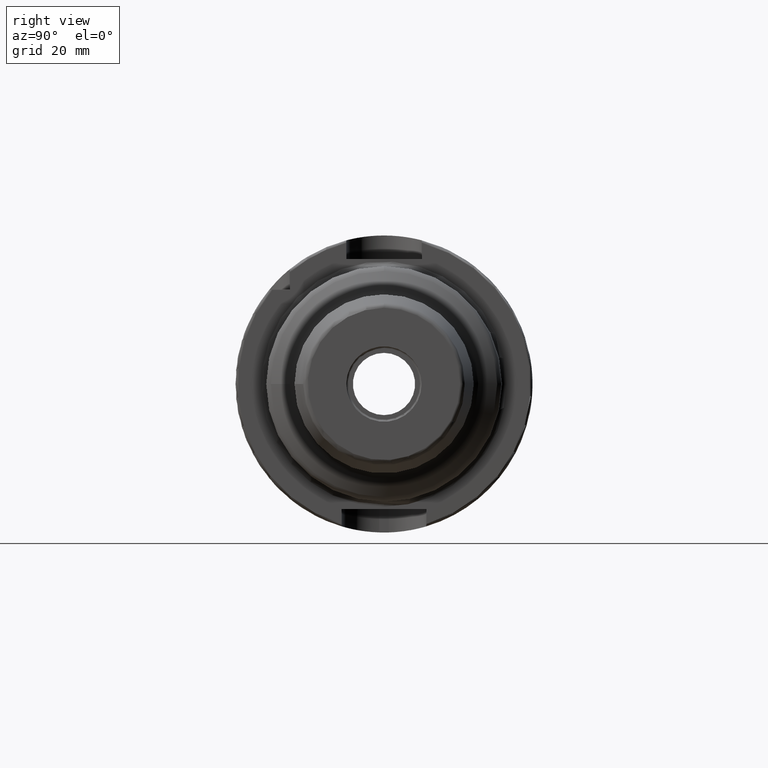
[diagram: clean part render]
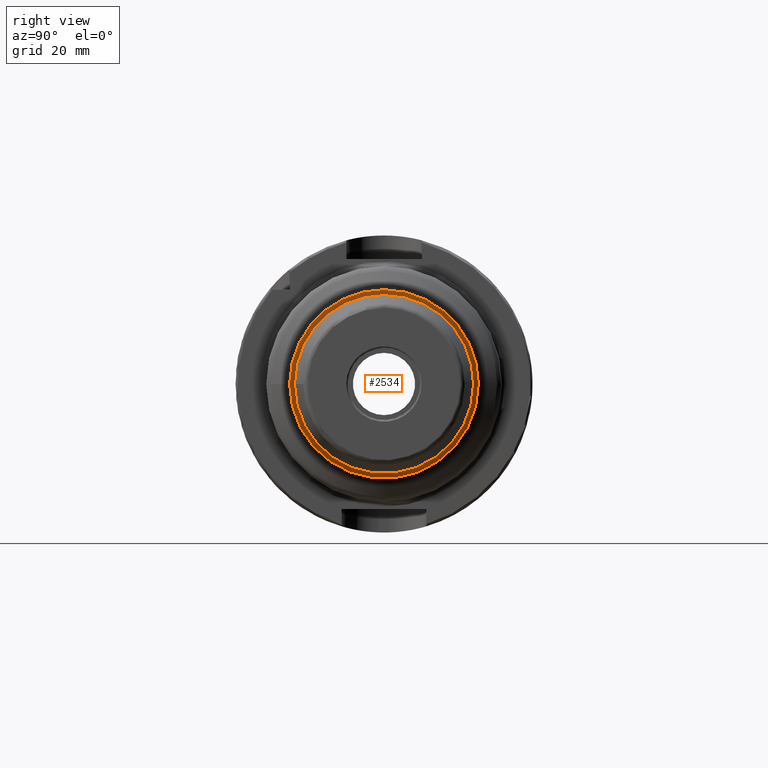
[diagram: same view with one face highlighted and labeled with its STEP entity id]
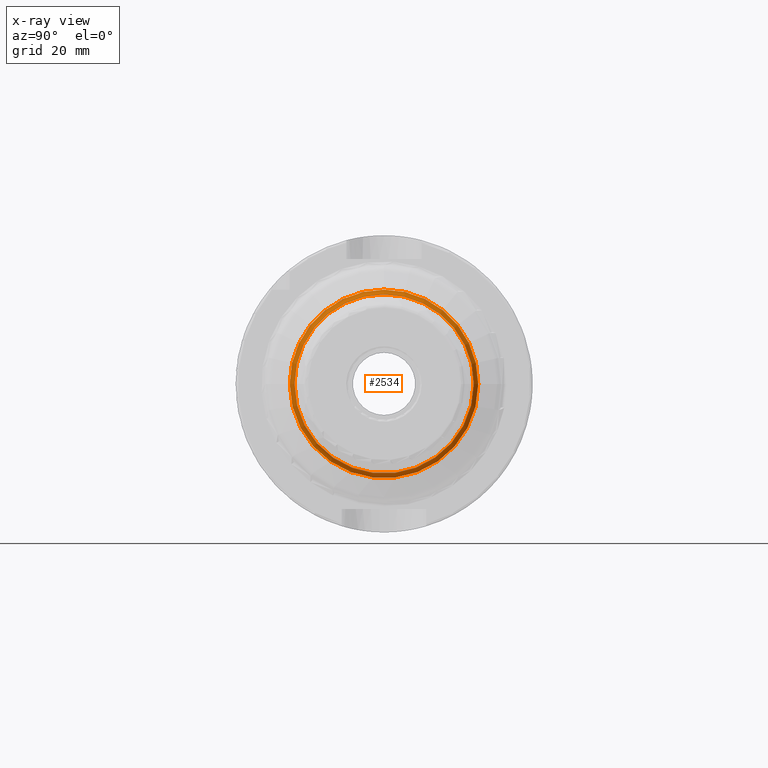
[diagram: x-ray of the same camera — body ghosted, the highlighted face saturated]
A machine part, right view. The second image highlights one B-rep face of the part: STEP entity #2534.
The next image is the same camera in x-ray: the body ghosted, the highlighted face saturated — about 0% of this face is hidden behind the body in this view.
In plain terms, the highlighted toroidal blend (fillet) surface has major radius 21 mm and minor (blend) radius 2 mm.
Its self-contained STEP definition (entity closure, byte-faithful):
#116=TOROIDAL_SURFACE('',#2699,21.,2.);
#207=FACE_OUTER_BOUND('',#343,.T.);
#343=EDGE_LOOP('',(#1674,#1675,#1676,#1677,#1678,#1679,#1680,#1681));
#721=CIRCLE('',#2700,20.);
#722=CIRCLE('',#2701,2.);
#723=CIRCLE('',#2702,19.);
#724=CIRCLE('',#2703,19.);
#725=CIRCLE('',#2704,19.);
#726=CIRCLE('',#2705,20.);
#727=CIRCLE('',#2706,20.);
#947=VERTEX_POINT('',#3930);
#948=VERTEX_POINT('',#3931);
#949=VERTEX_POINT('',#3933);
#950=VERTEX_POINT('',#3935);
#951=VERTEX_POINT('',#3937);
#952=VERTEX_POINT('',#3940);
#1243=EDGE_CURVE('',#947,#948,#721,.T.);
#1244=EDGE_CURVE('',#948,#949,#722,.T.);
#1245=EDGE_CURVE('',#949,#950,#723,.T.);
#1246=EDGE_CURVE('',#950,#951,#724,.T.);
#1247=EDGE_CURVE('',#951,#949,#725,.T.);
#1248=EDGE_CURVE('',#948,#952,#726,.T.);
#1249=EDGE_CURVE('',#952,#947,#727,.T.);
#1674=ORIENTED_EDGE('',*,*,#1243,.T.);
#1675=ORIENTED_EDGE('',*,*,#1244,.T.);
#1676=ORIENTED_EDGE('',*,*,#1245,.T.);
#1677=ORIENTED_EDGE('',*,*,#1246,.T.);
#1678=ORIENTED_EDGE('',*,*,#1247,.T.);
#1679=ORIENTED_EDGE('',*,*,#1244,.F.);
#1680=ORIENTED_EDGE('',*,*,#1248,.T.);
#1681=ORIENTED_EDGE('',*,*,#1249,.T.);
#2534=ADVANCED_FACE('',(#207),#116,.F.);
#2699=AXIS2_PLACEMENT_3D('',#3929,#3086,#3087);
#2700=AXIS2_PLACEMENT_3D('',#3932,#3088,#3089);
#2701=AXIS2_PLACEMENT_3D('',#3934,#3090,#3091);
#2702=AXIS2_PLACEMENT_3D('',#3936,#3092,#3093);
#2703=AXIS2_PLACEMENT_3D('',#3938,#3094,#3095);
#2704=AXIS2_PLACEMENT_3D('',#3939,#3096,#3097);
#2705=AXIS2_PLACEMENT_3D('',#3941,#3098,#3099);
#2706=AXIS2_PLACEMENT_3D('',#3942,#3100,#3101);
#3086=DIRECTION('center_axis',(1.,0.,0.));
#3087=DIRECTION('ref_axis',(0.,0.,-1.));
#3088=DIRECTION('center_axis',(1.,0.,0.));
#3089=DIRECTION('ref_axis',(0.,-1.,3.06161699786838E-17));
#3090=DIRECTION('center_axis',(0.,-1.,-1.22464679914735E-16));
#3091=DIRECTION('ref_axis',(0.,-1.22464679914735E-16,1.));
#3092=DIRECTION('center_axis',(-1.,0.,0.));
#3093=DIRECTION('ref_axis',(0.,-1.,1.83697019872103E-16));
#3094=DIRECTION('center_axis',(-1.,0.,0.));
#3095=DIRECTION('ref_axis',(0.,-1.,1.83697019872103E-16));
#3096=DIRECTION('center_axis',(-1.,0.,0.));
#3097=DIRECTION('ref_axis',(0.,-1.,1.83697019872103E-16));
#3098=DIRECTION('center_axis',(1.,0.,0.));
#3099=DIRECTION('ref_axis',(0.,-1.,3.06161699786838E-17));
#3100=DIRECTION('center_axis',(1.,0.,0.));
#3101=DIRECTION('ref_axis',(0.,-1.,3.06161699786838E-17));
#3929=CARTESIAN_POINT('Origin',(45.1547005383792,0.,0.));
#3930=CARTESIAN_POINT('',(43.4226497308104,20.,-1.22464679914735E-15));
#3931=CARTESIAN_POINT('',(43.4226497308104,-2.44929359829471E-15,20.));
#3932=CARTESIAN_POINT('Origin',(43.4226497308104,0.,-3.06161699786839E-15));
#3933=CARTESIAN_POINT('',(45.1547005383792,-2.32682891837997E-15,19.));
#3934=CARTESIAN_POINT('Origin',(45.1547005383792,-2.57175827820944E-15,
21.));
#3935=CARTESIAN_POINT('',(45.1547005383792,19.,-5.81707229594993E-15));
#3936=CARTESIAN_POINT('Origin',(45.1547005383792,0.,0.));
#3937=CARTESIAN_POINT('',(45.1547005383792,-19.,-2.32682891837997E-15));
#3938=CARTESIAN_POINT('Origin',(45.1547005383792,0.,0.));
#3939=CARTESIAN_POINT('Origin',(45.1547005383792,0.,0.));
#3940=CARTESIAN_POINT('',(43.4226497308104,-20.,-2.44929359829471E-15));
#3941=CARTESIAN_POINT('Origin',(43.4226497308104,0.,-3.06161699786839E-15));
#3942=CARTESIAN_POINT('Origin',(43.4226497308104,0.,-3.06161699786839E-15));